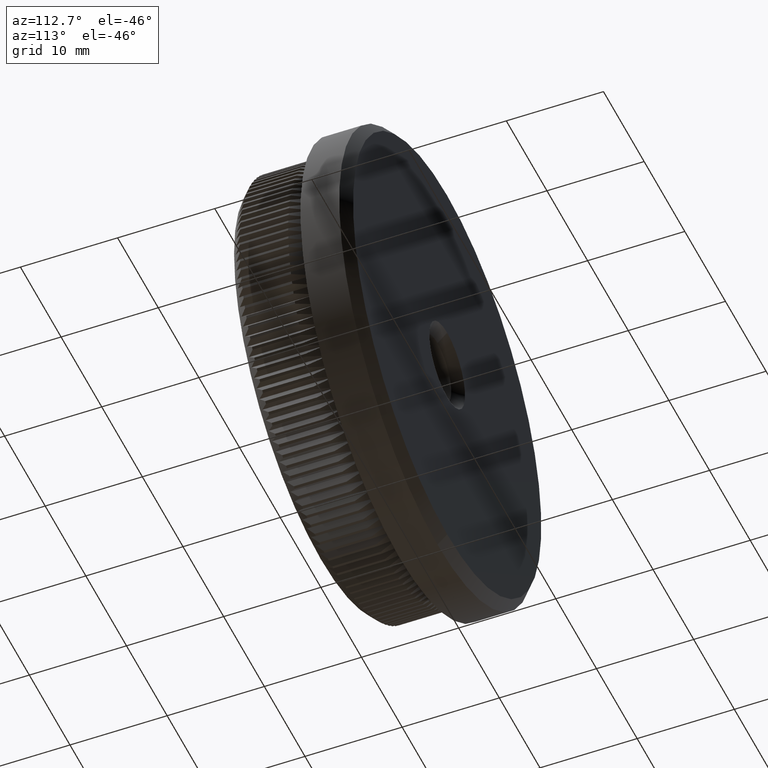
[diagram: clean part render]
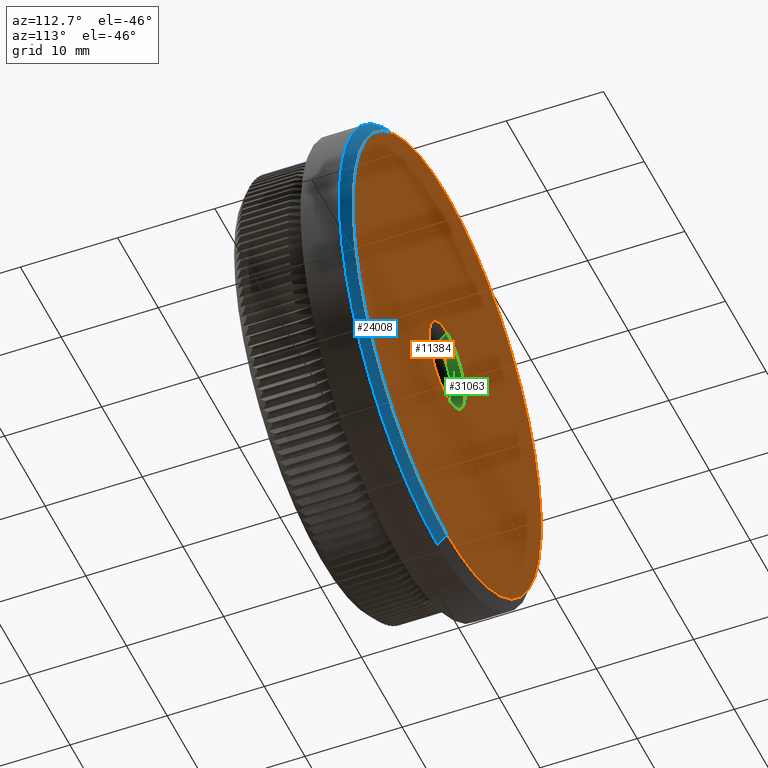
[diagram: same view with three faces highlighted in distinct colors, each labeled with its STEP entity id]
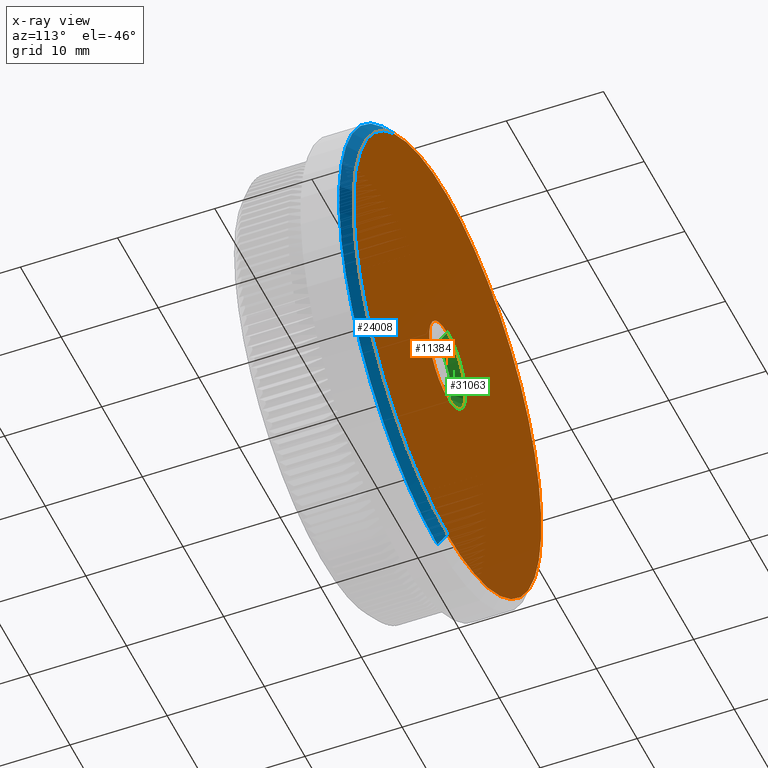
[diagram: x-ray of the same camera — body ghosted, the three highlighted faces saturated]
A machine part, auxiliary view with three faces highlighted in distinct colors.
The next image is the same camera in x-ray (body ghosted, the three faces saturated) — at least one of them is partly hidden behind the body in this view.
Their STEP definitions:

[orange] entity #11384 — the highlighted planar face has unit normal (0, 1, 0).
#534 = CARTESIAN_POINT ( 'NONE',  ( 2.896289679983490000E-015, 13.00000000000000000, 23.14999999999999900 ) ) ;
#1982 = CARTESIAN_POINT ( 'NONE',  ( 0.0000000000000000000, 13.00000000000000000, 4.400000000000004800 ) ) ;
#2132 = CARTESIAN_POINT ( 'NONE',  ( 5.388445916248359900E-016, 13.00000000000000000, -4.400000000000004800 ) ) ;
#2177 = DIRECTION ( 'NONE',  ( 0.0000000000000000000, 1.000000000000000000, 0.0000000000000000000 ) ) ;
#3296 = ORIENTED_EDGE ( 'NONE', *, *, #18390, .T. ) ;
#3355 = VERTEX_POINT ( 'NONE', #27318 ) ;
#3892 = EDGE_LOOP ( 'NONE', ( #12411, #19529 ) ) ;
#4221 = CIRCLE ( 'NONE', #25054, 4.400000000000004800 ) ;
#4595 = DIRECTION ( 'NONE',  ( 0.0000000000000000000, 0.0000000000000000000, 1.000000000000000000 ) ) ;
#6966 = CIRCLE ( 'NONE', #8761, 23.14999999999999900 ) ;
#8440 = ORIENTED_EDGE ( 'NONE', *, *, #9588, .T. ) ;
#8449 = VERTEX_POINT ( 'NONE', #1982 ) ;
#8761 = AXIS2_PLACEMENT_3D ( 'NONE', #10498, #23066, #10380 ) ;
#9588 = EDGE_CURVE ( 'NONE', #21995, #3355, #6966, .T. ) ;
#9833 = EDGE_CURVE ( 'NONE', #11262, #8449, #4221, .T. ) ;
#10092 = DIRECTION ( 'NONE',  ( 0.0000000000000000000, 0.0000000000000000000, 1.000000000000000000 ) ) ;
#10380 = DIRECTION ( 'NONE',  ( 0.0000000000000000000, 0.0000000000000000000, 1.000000000000000000 ) ) ;
#10498 = CARTESIAN_POINT ( 'NONE',  ( 0.0000000000000000000, 13.00000000000000000, 0.0000000000000000000 ) ) ;
#11262 = VERTEX_POINT ( 'NONE', #2132 ) ;
#11384 = ADVANCED_FACE ( 'NONE', ( #25087, #30976 ), #13562, .T. ) ;
#12062 = DIRECTION ( 'NONE',  ( -0.0000000000000000000, -1.000000000000000000, -0.0000000000000000000 ) ) ;
#12130 = DIRECTION ( 'NONE',  ( 0.0000000000000000000, 0.0000000000000000000, 1.000000000000000000 ) ) ;
#12411 = ORIENTED_EDGE ( 'NONE', *, *, #14029, .T. ) ;
#13562 = PLANE ( 'NONE',  #32217 ) ;
#14029 = EDGE_CURVE ( 'NONE', #8449, #11262, #27464, .T. ) ;
#15040 = AXIS2_PLACEMENT_3D ( 'NONE', #27634, #2177, #4595 ) ;
#15792 = CARTESIAN_POINT ( 'NONE',  ( 0.0000000000000000000, 13.00000000000000000, 0.0000000000000000000 ) ) ;
#18390 = EDGE_CURVE ( 'NONE', #3355, #21995, #19418, .T. ) ;
#19418 = CIRCLE ( 'NONE', #15040, 23.14999999999999900 ) ;
#19529 = ORIENTED_EDGE ( 'NONE', *, *, #9833, .T. ) ;
#21995 = VERTEX_POINT ( 'NONE', #534 ) ;
#22079 = DIRECTION ( 'NONE',  ( -0.0000000000000000000, -1.000000000000000000, -0.0000000000000000000 ) ) ;
#22110 = CARTESIAN_POINT ( 'NONE',  ( 0.0000000000000000000, 13.00000000000000000, 0.0000000000000000000 ) ) ;
#23066 = DIRECTION ( 'NONE',  ( 0.0000000000000000000, 1.000000000000000000, 0.0000000000000000000 ) ) ;
#23292 = DIRECTION ( 'NONE',  ( 0.0000000000000000000, 1.000000000000000000, 0.0000000000000000000 ) ) ;
#25054 = AXIS2_PLACEMENT_3D ( 'NONE', #22110, #12062, #10092 ) ;
#25087 = FACE_BOUND ( 'NONE', #3892, .T. ) ;
#26574 = EDGE_LOOP ( 'NONE', ( #3296, #8440 ) ) ;
#27318 = CARTESIAN_POINT ( 'NONE',  ( 0.0000000000000000000, 13.00000000000000000, -23.14999999999999900 ) ) ;
#27464 = CIRCLE ( 'NONE', #30596, 4.400000000000004800 ) ;
#27634 = CARTESIAN_POINT ( 'NONE',  ( 0.0000000000000000000, 13.00000000000000000, 0.0000000000000000000 ) ) ;
#29789 = CARTESIAN_POINT ( 'NONE',  ( 0.0000000000000000000, 13.00000000000000000, 0.0000000000000000000 ) ) ;
#30596 = AXIS2_PLACEMENT_3D ( 'NONE', #29789, #22079, #12130 ) ;
#30976 = FACE_OUTER_BOUND ( 'NONE', #26574, .T. ) ;
#31200 = DIRECTION ( 'NONE',  ( 0.0000000000000000000, -0.0000000000000000000, 1.000000000000000000 ) ) ;
#32217 = AXIS2_PLACEMENT_3D ( 'NONE', #15792, #23292, #31200 ) ;

[blue] entity #24008 — the highlighted conical surface has half-angle 45 deg.
#534 = CARTESIAN_POINT ( 'NONE',  ( 2.896289679983490000E-015, 13.00000000000000000, 23.14999999999999900 ) ) ;
#703 = VECTOR ( 'NONE', #3788, 1000.000000000000000 ) ;
#1454 = DIRECTION ( 'NONE',  ( 0.0000000000000000000, -0.7071067811865487900, -0.7071067811865463500 ) ) ;
#2949 = ORIENTED_EDGE ( 'NONE', *, *, #26252, .F. ) ;
#3100 = VERTEX_POINT ( 'NONE', #6747 ) ;
#3355 = VERTEX_POINT ( 'NONE', #27318 ) ;
#3788 = DIRECTION ( 'NONE',  ( 8.659560562354918100E-017, -0.7071067811865487900, 0.7071067811865463500 ) ) ;
#4352 = DIRECTION ( 'NONE',  ( -0.0000000000000000000, -1.000000000000000000, -0.0000000000000000000 ) ) ;
#6004 = VERTEX_POINT ( 'NONE', #30790 ) ;
#6747 = CARTESIAN_POINT ( 'NONE',  ( 0.0000000000000000000, 11.99999999999999500, -24.14999999999999900 ) ) ;
#6966 = CIRCLE ( 'NONE', #8761, 23.14999999999999900 ) ;
#7213 = CARTESIAN_POINT ( 'NONE',  ( 0.0000000000000000000, 11.99999999999999500, 0.0000000000000000000 ) ) ;
#8761 = AXIS2_PLACEMENT_3D ( 'NONE', #10498, #23066, #10380 ) ;
#9431 = DIRECTION ( 'NONE',  ( 0.0000000000000000000, 0.0000000000000000000, 1.000000000000000000 ) ) ;
#9588 = EDGE_CURVE ( 'NONE', #21995, #3355, #6966, .T. ) ;
#10380 = DIRECTION ( 'NONE',  ( 0.0000000000000000000, 0.0000000000000000000, 1.000000000000000000 ) ) ;
#10498 = CARTESIAN_POINT ( 'NONE',  ( 0.0000000000000000000, 13.00000000000000000, 0.0000000000000000000 ) ) ;
#10976 = CARTESIAN_POINT ( 'NONE',  ( 0.0000000000000000000, 11.99999999999999500, 0.0000000000000000000 ) ) ;
#12105 = FACE_OUTER_BOUND ( 'NONE', #15629, .T. ) ;
#13687 = CARTESIAN_POINT ( 'NONE',  ( 0.0000000000000000000, 11.99999999999999500, -24.14999999999999900 ) ) ;
#13914 = ORIENTED_EDGE ( 'NONE', *, *, #26164, .T. ) ;
#15629 = EDGE_LOOP ( 'NONE', ( #31681, #13914, #31396, #2949 ) ) ;
#16091 = VECTOR ( 'NONE', #1454, 1000.000000000000000 ) ;
#17493 = AXIS2_PLACEMENT_3D ( 'NONE', #7213, #4352, #9431 ) ;
#18378 = DIRECTION ( 'NONE',  ( 0.0000000000000000000, 0.0000000000000000000, -1.000000000000000000 ) ) ;
#18894 = CARTESIAN_POINT ( 'NONE',  ( 2.957522019940857900E-015, 11.99999999999999500, 24.14999999999999900 ) ) ;
#21995 = VERTEX_POINT ( 'NONE', #534 ) ;
#23066 = DIRECTION ( 'NONE',  ( 0.0000000000000000000, 1.000000000000000000, 0.0000000000000000000 ) ) ;
#23178 = CONICAL_SURFACE ( 'NONE', #28246, 24.14999999999999900, 0.7853981633974466100 ) ;
#24008 = ADVANCED_FACE ( 'NONE', ( #12105 ), #23178, .T. ) ;
#24543 = CIRCLE ( 'NONE', #17493, 24.14999999999999900 ) ;
#25756 = DIRECTION ( 'NONE',  ( -0.0000000000000000000, -1.000000000000000000, -0.0000000000000000000 ) ) ;
#26164 = EDGE_CURVE ( 'NONE', #21995, #6004, #27531, .T. ) ;
#26252 = EDGE_CURVE ( 'NONE', #3355, #3100, #29496, .T. ) ;
#27318 = CARTESIAN_POINT ( 'NONE',  ( 0.0000000000000000000, 13.00000000000000000, -23.14999999999999900 ) ) ;
#27531 = LINE ( 'NONE', #18894, #703 ) ;
#28246 = AXIS2_PLACEMENT_3D ( 'NONE', #10976, #25756, #18378 ) ;
#29496 = LINE ( 'NONE', #13687, #16091 ) ;
#30790 = CARTESIAN_POINT ( 'NONE',  ( 2.957522019940857900E-015, 11.99999999999999500, 24.14999999999999900 ) ) ;
#31396 = ORIENTED_EDGE ( 'NONE', *, *, #32366, .F. ) ;
#31681 = ORIENTED_EDGE ( 'NONE', *, *, #9588, .F. ) ;
#32366 = EDGE_CURVE ( 'NONE', #3100, #6004, #24543, .T. ) ;

[green] entity #31063 — the highlighted conical surface has half-angle 45 deg.
#475 = CARTESIAN_POINT ( 'NONE',  ( 4.163799117100997600E-016, 11.99999999999998000, 3.399999999999997700 ) ) ;
#724 = ORIENTED_EDGE ( 'NONE', *, *, #18053, .F. ) ;
#1982 = CARTESIAN_POINT ( 'NONE',  ( 0.0000000000000000000, 13.00000000000000000, 4.400000000000004800 ) ) ;
#2132 = CARTESIAN_POINT ( 'NONE',  ( 5.388445916248359900E-016, 13.00000000000000000, -4.400000000000004800 ) ) ;
#2304 = CARTESIAN_POINT ( 'NONE',  ( 0.0000000000000000000, 11.99999999999998000, -3.399999999999997700 ) ) ;
#2902 = VERTEX_POINT ( 'NONE', #2304 ) ;
#6050 = ORIENTED_EDGE ( 'NONE', *, *, #14079, .F. ) ;
#8449 = VERTEX_POINT ( 'NONE', #1982 ) ;
#11262 = VERTEX_POINT ( 'NONE', #2132 ) ;
#11590 = ORIENTED_EDGE ( 'NONE', *, *, #14029, .F. ) ;
#12022 = CARTESIAN_POINT ( 'NONE',  ( 0.0000000000000000000, 13.00000000000000000, 4.400000000000004800 ) ) ;
#12130 = DIRECTION ( 'NONE',  ( 0.0000000000000000000, 0.0000000000000000000, 1.000000000000000000 ) ) ;
#12289 = CIRCLE ( 'NONE', #17377, 3.399999999999997700 ) ;
#13852 = VERTEX_POINT ( 'NONE', #475 ) ;
#14029 = EDGE_CURVE ( 'NONE', #8449, #11262, #27464, .T. ) ;
#14079 = EDGE_CURVE ( 'NONE', #13852, #8449, #28665, .T. ) ;
#15760 = DIRECTION ( 'NONE',  ( -0.0000000000000000000, 1.000000000000000000, -0.0000000000000000000 ) ) ;
#16003 = AXIS2_PLACEMENT_3D ( 'NONE', #19755, #27790, #27344 ) ;
#16658 = VECTOR ( 'NONE', #25451, 1000.000000000000000 ) ;
#16721 = FACE_OUTER_BOUND ( 'NONE', #23506, .T. ) ;
#17377 = AXIS2_PLACEMENT_3D ( 'NONE', #30633, #15760, #25906 ) ;
#18053 = EDGE_CURVE ( 'NONE', #2902, #13852, #12289, .T. ) ;
#19041 = LINE ( 'NONE', #28210, #16658 ) ;
#19074 = CONICAL_SURFACE ( 'NONE', #16003, 4.400000000000004800, 0.7853981633974426200 ) ;
#19755 = CARTESIAN_POINT ( 'NONE',  ( 0.0000000000000000000, 13.00000000000000000, 0.0000000000000000000 ) ) ;
#22079 = DIRECTION ( 'NONE',  ( -0.0000000000000000000, -1.000000000000000000, -0.0000000000000000000 ) ) ;
#23506 = EDGE_LOOP ( 'NONE', ( #724, #26675, #11590, #6050 ) ) ;
#25451 = DIRECTION ( 'NONE',  ( 8.659560562354884800E-017, 0.7071067811865515700, -0.7071067811865435800 ) ) ;
#25906 = DIRECTION ( 'NONE',  ( 0.0000000000000000000, 0.0000000000000000000, 1.000000000000000000 ) ) ;
#26675 = ORIENTED_EDGE ( 'NONE', *, *, #32089, .T. ) ;
#27344 = DIRECTION ( 'NONE',  ( 0.0000000000000000000, 0.0000000000000000000, 1.000000000000000000 ) ) ;
#27464 = CIRCLE ( 'NONE', #30596, 4.400000000000004800 ) ;
#27790 = DIRECTION ( 'NONE',  ( -0.0000000000000000000, 1.000000000000000000, -0.0000000000000000000 ) ) ;
#28210 = CARTESIAN_POINT ( 'NONE',  ( 5.388445916248359900E-016, 13.00000000000000000, -4.400000000000004800 ) ) ;
#28271 = VECTOR ( 'NONE', #29895, 1000.000000000000000 ) ;
#28665 = LINE ( 'NONE', #12022, #28271 ) ;
#29789 = CARTESIAN_POINT ( 'NONE',  ( 0.0000000000000000000, 13.00000000000000000, 0.0000000000000000000 ) ) ;
#29895 = DIRECTION ( 'NONE',  ( 0.0000000000000000000, 0.7071067811865515700, 0.7071067811865435800 ) ) ;
#30596 = AXIS2_PLACEMENT_3D ( 'NONE', #29789, #22079, #12130 ) ;
#30633 = CARTESIAN_POINT ( 'NONE',  ( 0.0000000000000000000, 11.99999999999998000, 0.0000000000000000000 ) ) ;
#31063 = ADVANCED_FACE ( 'NONE', ( #16721 ), #19074, .F. ) ;
#32089 = EDGE_CURVE ( 'NONE', #2902, #11262, #19041, .T. ) ;